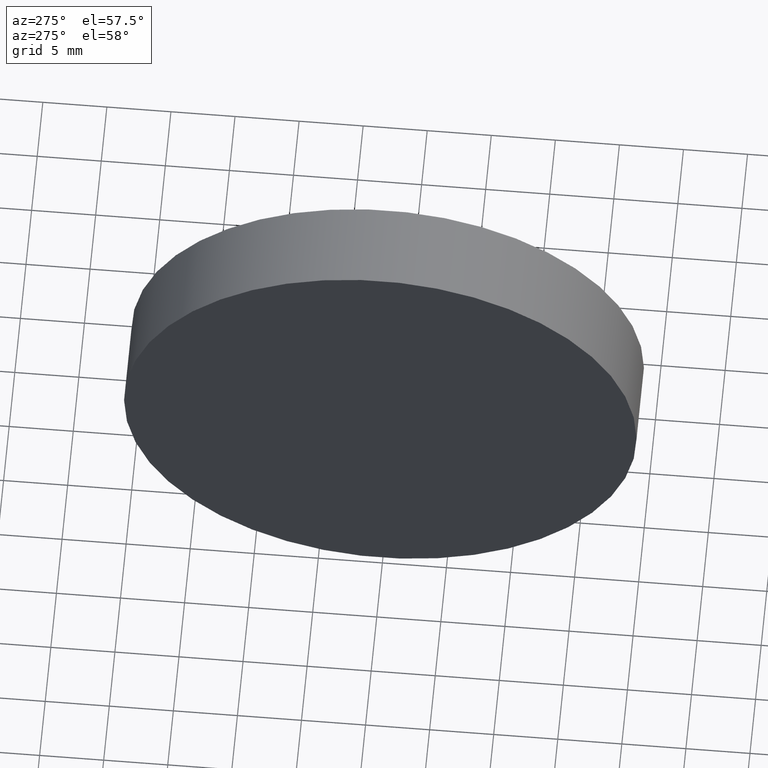
[diagram: clean part render]
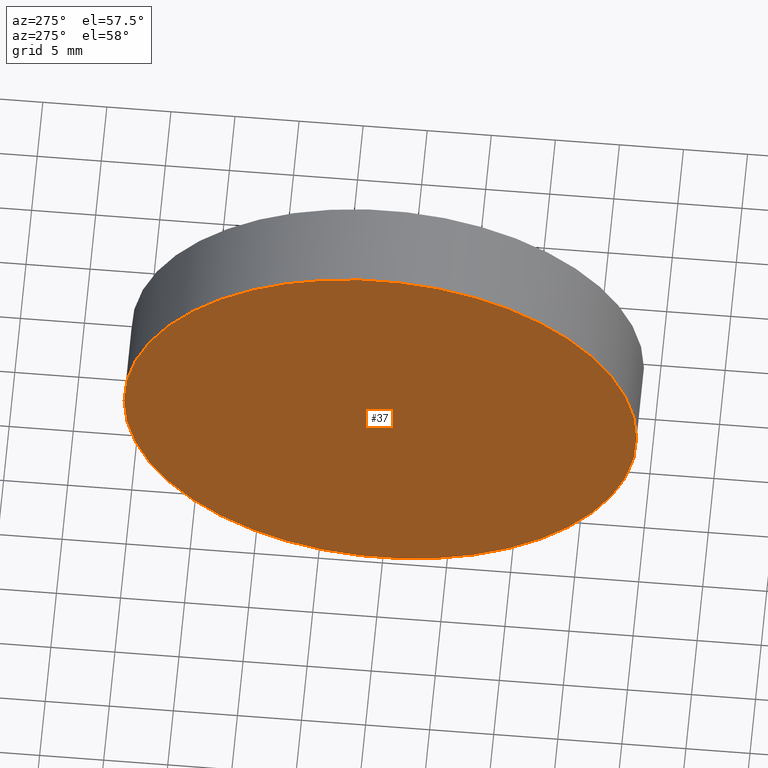
[diagram: same view with one face highlighted and labeled with its STEP entity id]
A machine part, auxiliary view. The second image highlights one B-rep face of the part: STEP entity #37.
In plain terms, the highlighted planar face has unit normal (1, -0, 0).
Its self-contained STEP definition (entity closure, byte-faithful):
#1 = CIRCLE ( 'NONE', #123, 20.00000000000000400 ) ;
#4 = CARTESIAN_POINT ( 'NONE',  ( 114.9754472601862300, 65.15745182658619700, 0.0000000000000000000 ) ) ;
#9 = DIRECTION ( 'NONE',  ( -6.938893903907227400E-016, -1.000000000000000000, 0.0000000000000000000 ) ) ;
#11 = ORIENTED_EDGE ( 'NONE', *, *, #57, .T. ) ;
#12 = AXIS2_PLACEMENT_3D ( 'NONE', #4, #19, #31 ) ;
#19 = DIRECTION ( 'NONE',  ( 1.000000000000000000, -6.488933942079480100E-016, 0.0000000000000000000 ) ) ;
#22 = DIRECTION ( 'NONE',  ( -1.000000000000000000, 6.488933942079480100E-016, -0.0000000000000000000 ) ) ;
#30 = CARTESIAN_POINT ( 'NONE',  ( 114.9754472601862300, 85.15745182658619700, 2.449293598294710100E-015 ) ) ;
#31 = DIRECTION ( 'NONE',  ( 6.488933942079480100E-016, 1.000000000000000000, 0.0000000000000000000 ) ) ;
#35 = CARTESIAN_POINT ( 'NONE',  ( 114.9754472601862000, 45.15745182658619000, 0.0000000000000000000 ) ) ;
#36 = VERTEX_POINT ( 'NONE', #30 ) ;
#37 = ADVANCED_FACE ( 'NONE', ( #139 ), #73, .F. ) ;
#57 = EDGE_CURVE ( 'NONE', #111, #36, #1, .T. ) ;
#71 = DIRECTION ( 'NONE',  ( -1.000000000000000000, 6.488933942079480100E-016, -0.0000000000000000000 ) ) ;
#73 = PLANE ( 'NONE',  #12 ) ;
#79 = EDGE_CURVE ( 'NONE', #36, #111, #152, .T. ) ;
#111 = VERTEX_POINT ( 'NONE', #35 ) ;
#114 = ORIENTED_EDGE ( 'NONE', *, *, #79, .T. ) ;
#123 = AXIS2_PLACEMENT_3D ( 'NONE', #141, #71, #154 ) ;
#139 = FACE_OUTER_BOUND ( 'NONE', #144, .T. ) ;
#141 = CARTESIAN_POINT ( 'NONE',  ( 114.9754472601862100, 65.15745182658619700, 0.0000000000000000000 ) ) ;
#144 = EDGE_LOOP ( 'NONE', ( #11, #114 ) ) ;
#145 = CARTESIAN_POINT ( 'NONE',  ( 114.9754472601862100, 65.15745182658619700, 0.0000000000000000000 ) ) ;
#152 = CIRCLE ( 'NONE', #165, 20.00000000000000400 ) ;
#154 = DIRECTION ( 'NONE',  ( -6.938893903907227400E-016, -1.000000000000000000, 0.0000000000000000000 ) ) ;
#165 = AXIS2_PLACEMENT_3D ( 'NONE', #145, #22, #9 ) ;